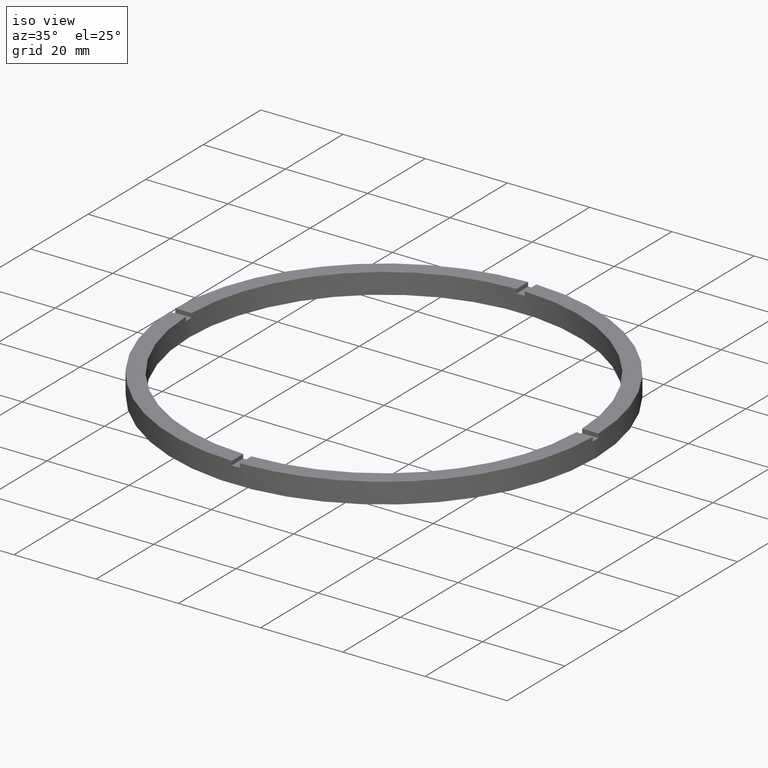
[diagram: clean part render]
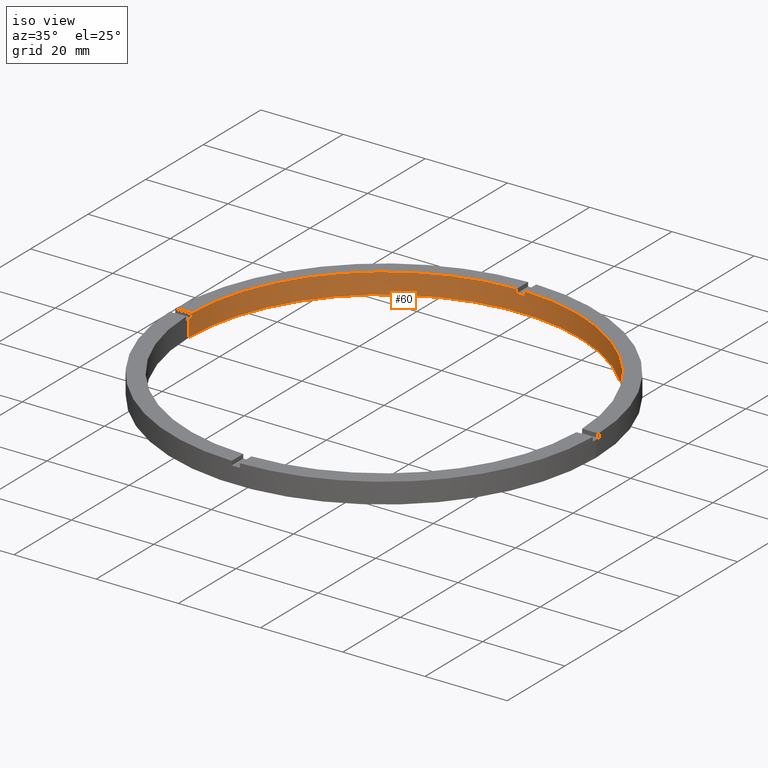
[diagram: same view with one face highlighted and labeled with its STEP entity id]
A machine part, iso view. The second image highlights one B-rep face of the part: STEP entity #60.
In plain terms, the highlighted cylindrical surface (partial cylindrical patch) has radius 47.5 mm, axis along (-0, -0, -1).
Its self-contained STEP definition (entity closure, byte-faithful):
#3 = DIRECTION ( 'NONE',  ( -1.000000000000000000, 0.000000000000000000, 0.000000000000000000 ) ) ;
#5 = EDGE_CURVE ( 'NONE', #695, #442, #654, .T. ) ;
#16 = DIRECTION ( 'NONE',  ( 1.000000000000000000, 0.000000000000000000, 0.000000000000000000 ) ) ;
#32 = ORIENTED_EDGE ( 'NONE', *, *, #280, .F. ) ;
#50 = AXIS2_PLACEMENT_3D ( 'NONE', #415, #478, #727 ) ;
#60 = ADVANCED_FACE ( 'NONE', ( #154 ), #220, .F. ) ;
#64 = CARTESIAN_POINT ( 'NONE',  ( 0.000000000000000000, 0.000000000000000000, 0.000000000000000000 ) ) ;
#65 = CARTESIAN_POINT ( 'NONE',  ( 47.50000000000000711, 5.817072295949929004E-15, 0.000000000000000000 ) ) ;
#89 = DIRECTION ( 'NONE',  ( 0.000000000000000000, 0.000000000000000000, 1.000000000000000000 ) ) ;
#99 = VERTEX_POINT ( 'NONE', #390 ) ;
#100 = DIRECTION ( 'NONE',  ( 0.000000000000000000, 0.000000000000000000, 1.000000000000000000 ) ) ;
#105 = AXIS2_PLACEMENT_3D ( 'NONE', #589, #533, #582 ) ;
#116 = VERTEX_POINT ( 'NONE', #584 ) ;
#118 = VERTEX_POINT ( 'NONE', #618 ) ;
#119 = CARTESIAN_POINT ( 'NONE',  ( -47.50000000000000711, 0.000000000000000000, 5.000000000000000000 ) ) ;
#120 = CARTESIAN_POINT ( 'NONE',  ( -47.50000000000000711, 0.000000000000000000, 0.000000000000000000 ) ) ;
#134 = VECTOR ( 'NONE', #660, 1000.000000000000000 ) ;
#136 = ORIENTED_EDGE ( 'NONE', *, *, #215, .T. ) ;
#144 = ORIENTED_EDGE ( 'NONE', *, *, #398, .T. ) ;
#154 = FACE_OUTER_BOUND ( 'NONE', #653, .T. ) ;
#164 = VERTEX_POINT ( 'NONE', #285 ) ;
#183 = ORIENTED_EDGE ( 'NONE', *, *, #201, .T. ) ;
#190 = VERTEX_POINT ( 'NONE', #313 ) ;
#199 = DIRECTION ( 'NONE',  ( 1.000000000000000000, 0.000000000000000000, 0.000000000000000000 ) ) ;
#201 = EDGE_CURVE ( 'NONE', #385, #434, #230, .T. ) ;
#212 = CARTESIAN_POINT ( 'NONE',  ( 47.50000000000000711, 5.817072295949929004E-15, 4.000000000000000000 ) ) ;
#213 = DIRECTION ( 'NONE',  ( -0.000000000000000000, -0.000000000000000000, -1.000000000000000000 ) ) ;
#215 = EDGE_CURVE ( 'NONE', #116, #99, #737, .T. ) ;
#220 = CYLINDRICAL_SURFACE ( 'NONE', #257, 47.50000000000000711 ) ;
#224 = CARTESIAN_POINT ( 'NONE',  ( -47.48947251760120736, 0.9999999999999688027, 5.000000000000000000 ) ) ;
#225 = CARTESIAN_POINT ( 'NONE',  ( -1.000000000000026867, 47.48947251760120736, 5.000000000000000000 ) ) ;
#230 = CIRCLE ( 'NONE', #288, 47.50000000000000711 ) ;
#238 = CIRCLE ( 'NONE', #289, 47.50000000000000711 ) ;
#242 = CARTESIAN_POINT ( 'NONE',  ( 0.000000000000000000, 0.000000000000000000, 5.000000000000000000 ) ) ;
#247 = EDGE_CURVE ( 'NONE', #695, #453, #500, .T. ) ;
#257 = AXIS2_PLACEMENT_3D ( 'NONE', #242, #766, #3 ) ;
#264 = DIRECTION ( 'NONE',  ( 1.000000000000000000, 0.000000000000000000, 0.000000000000000000 ) ) ;
#267 = LINE ( 'NONE', #537, #521 ) ;
#280 = EDGE_CURVE ( 'NONE', #442, #624, #494, .T. ) ;
#285 = CARTESIAN_POINT ( 'NONE',  ( 47.48947251760121446, 0.9999999999998450129, 5.000000000000000000 ) ) ;
#287 = DIRECTION ( 'NONE',  ( -0.000000000000000000, -0.000000000000000000, -1.000000000000000000 ) ) ;
#288 = AXIS2_PLACEMENT_3D ( 'NONE', #634, #350, #264 ) ;
#289 = AXIS2_PLACEMENT_3D ( 'NONE', #619, #332, #607 ) ;
#292 = DIRECTION ( 'NONE',  ( -0.000000000000000000, -0.000000000000000000, -1.000000000000000000 ) ) ;
#313 = CARTESIAN_POINT ( 'NONE',  ( -47.48947251760120736, 0.9999999999999688027, 4.000000000000000000 ) ) ;
#314 = EDGE_CURVE ( 'NONE', #190, #434, #717, .T. ) ;
#321 = ORIENTED_EDGE ( 'NONE', *, *, #545, .F. ) ;
#323 = CARTESIAN_POINT ( 'NONE',  ( 47.48947251760121446, 0.9999999999998450129, 4.000000000000000000 ) ) ;
#332 = DIRECTION ( 'NONE',  ( 0.000000000000000000, 0.000000000000000000, 1.000000000000000000 ) ) ;
#350 = DIRECTION ( 'NONE',  ( 0.000000000000000000, 0.000000000000000000, 1.000000000000000000 ) ) ;
#363 = CARTESIAN_POINT ( 'NONE',  ( 0.9999999999999731326, 47.48947251760120736, 5.000000000000000000 ) ) ;
#385 = VERTEX_POINT ( 'NONE', #661 ) ;
#390 = CARTESIAN_POINT ( 'NONE',  ( -1.000000000000026867, 47.48947251760120736, 4.000000000000000000 ) ) ;
#398 = EDGE_CURVE ( 'NONE', #190, #414, #438, .T. ) ;
#412 = ORIENTED_EDGE ( 'NONE', *, *, #558, .F. ) ;
#414 = VERTEX_POINT ( 'NONE', #667 ) ;
#415 = CARTESIAN_POINT ( 'NONE',  ( 0.000000000000000000, 0.000000000000000000, 4.000000000000000000 ) ) ;
#418 = ORIENTED_EDGE ( 'NONE', *, *, #314, .F. ) ;
#434 = VERTEX_POINT ( 'NONE', #224 ) ;
#438 = CIRCLE ( 'NONE', #562, 47.50000000000000711 ) ;
#440 = DIRECTION ( 'NONE',  ( 0.000000000000000000, 0.000000000000000000, 1.000000000000000000 ) ) ;
#442 = VERTEX_POINT ( 'NONE', #65 ) ;
#451 = EDGE_CURVE ( 'NONE', #414, #624, #739, .T. ) ;
#453 = VERTEX_POINT ( 'NONE', #323 ) ;
#478 = DIRECTION ( 'NONE',  ( 0.000000000000000000, -0.000000000000000000, 1.000000000000000000 ) ) ;
#488 = EDGE_CURVE ( 'NONE', #385, #99, #747, .T. ) ;
#493 = CARTESIAN_POINT ( 'NONE',  ( -47.48947251760120736, 0.9999999999999688027, 5.000000000000000000 ) ) ;
#494 = CIRCLE ( 'NONE', #555, 47.50000000000000711 ) ;
#500 = CIRCLE ( 'NONE', #105, 47.50000000000000711 ) ;
#520 = VECTOR ( 'NONE', #440, 1000.000000000000000 ) ;
#521 = VECTOR ( 'NONE', #292, 1000.000000000000000 ) ;
#525 = LINE ( 'NONE', #363, #520 ) ;
#533 = DIRECTION ( 'NONE',  ( 0.000000000000000000, 0.000000000000000000, 1.000000000000000000 ) ) ;
#537 = CARTESIAN_POINT ( 'NONE',  ( 47.48947251760121446, 0.9999999999998450129, 5.000000000000000000 ) ) ;
#545 = EDGE_CURVE ( 'NONE', #164, #453, #267, .T. ) ;
#555 = AXIS2_PLACEMENT_3D ( 'NONE', #64, #100, #199 ) ;
#558 = EDGE_CURVE ( 'NONE', #116, #118, #525, .T. ) ;
#559 = ORIENTED_EDGE ( 'NONE', *, *, #5, .F. ) ;
#562 = AXIS2_PLACEMENT_3D ( 'NONE', #651, #751, #16 ) ;
#564 = CARTESIAN_POINT ( 'NONE',  ( 47.50000000000000711, 5.817072295949929004E-15, 5.000000000000000000 ) ) ;
#582 = DIRECTION ( 'NONE',  ( 1.000000000000000000, 0.000000000000000000, 0.000000000000000000 ) ) ;
#584 = CARTESIAN_POINT ( 'NONE',  ( 0.9999999999999731326, 47.48947251760120736, 4.000000000000000000 ) ) ;
#589 = CARTESIAN_POINT ( 'NONE',  ( 0.000000000000000000, 0.000000000000000000, 4.000000000000000000 ) ) ;
#598 = EDGE_CURVE ( 'NONE', #164, #118, #238, .T. ) ;
#607 = DIRECTION ( 'NONE',  ( 1.000000000000000000, 0.000000000000000000, 0.000000000000000000 ) ) ;
#618 = CARTESIAN_POINT ( 'NONE',  ( 0.9999999999999731326, 47.48947251760120736, 5.000000000000000000 ) ) ;
#619 = CARTESIAN_POINT ( 'NONE',  ( 0.000000000000000000, 0.000000000000000000, 5.000000000000000000 ) ) ;
#624 = VERTEX_POINT ( 'NONE', #120 ) ;
#631 = ORIENTED_EDGE ( 'NONE', *, *, #451, .T. ) ;
#634 = CARTESIAN_POINT ( 'NONE',  ( 0.000000000000000000, 0.000000000000000000, 5.000000000000000000 ) ) ;
#643 = ORIENTED_EDGE ( 'NONE', *, *, #598, .T. ) ;
#651 = CARTESIAN_POINT ( 'NONE',  ( 0.000000000000000000, 0.000000000000000000, 4.000000000000000000 ) ) ;
#653 = EDGE_LOOP ( 'NONE', ( #559, #722, #321, #643, #412, #136, #665, #183, #418, #144, #631, #32 ) ) ;
#654 = LINE ( 'NONE', #564, #134 ) ;
#660 = DIRECTION ( 'NONE',  ( -0.000000000000000000, -0.000000000000000000, -1.000000000000000000 ) ) ;
#661 = CARTESIAN_POINT ( 'NONE',  ( -1.000000000000026867, 47.48947251760120736, 5.000000000000000000 ) ) ;
#665 = ORIENTED_EDGE ( 'NONE', *, *, #488, .F. ) ;
#667 = CARTESIAN_POINT ( 'NONE',  ( -47.50000000000000711, 0.000000000000000000, 4.000000000000000000 ) ) ;
#695 = VERTEX_POINT ( 'NONE', #212 ) ;
#704 = VECTOR ( 'NONE', #287, 1000.000000000000000 ) ;
#717 = LINE ( 'NONE', #493, #752 ) ;
#720 = VECTOR ( 'NONE', #213, 1000.000000000000000 ) ;
#722 = ORIENTED_EDGE ( 'NONE', *, *, #247, .T. ) ;
#727 = DIRECTION ( 'NONE',  ( 1.000000000000000000, 0.000000000000000000, 0.000000000000000000 ) ) ;
#737 = CIRCLE ( 'NONE', #50, 47.50000000000000711 ) ;
#739 = LINE ( 'NONE', #119, #720 ) ;
#747 = LINE ( 'NONE', #225, #704 ) ;
#751 = DIRECTION ( 'NONE',  ( 0.000000000000000000, 0.000000000000000000, 1.000000000000000000 ) ) ;
#752 = VECTOR ( 'NONE', #89, 1000.000000000000000 ) ;
#766 = DIRECTION ( 'NONE',  ( -0.000000000000000000, -0.000000000000000000, -1.000000000000000000 ) ) ;